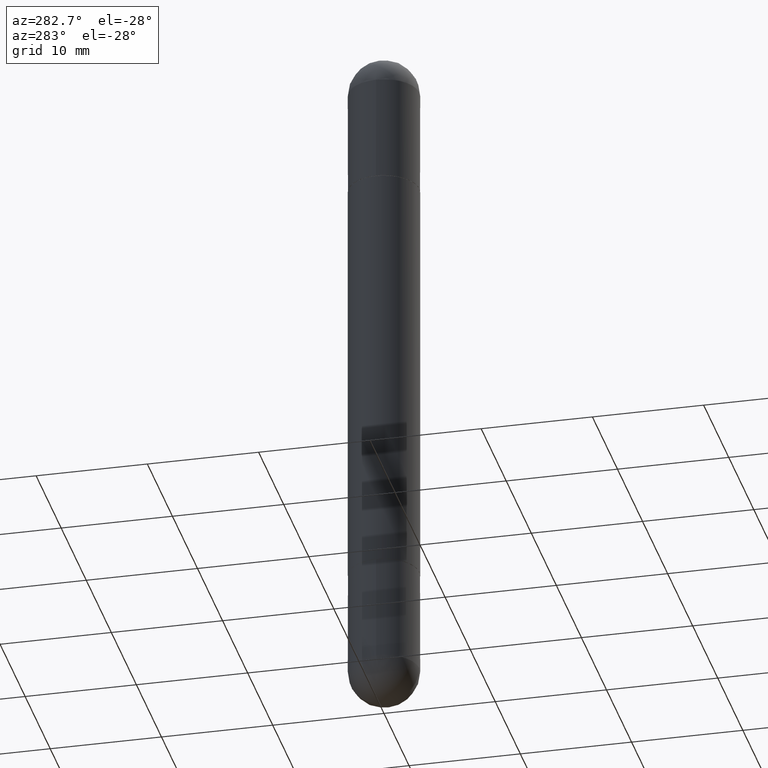
[diagram: clean part render]
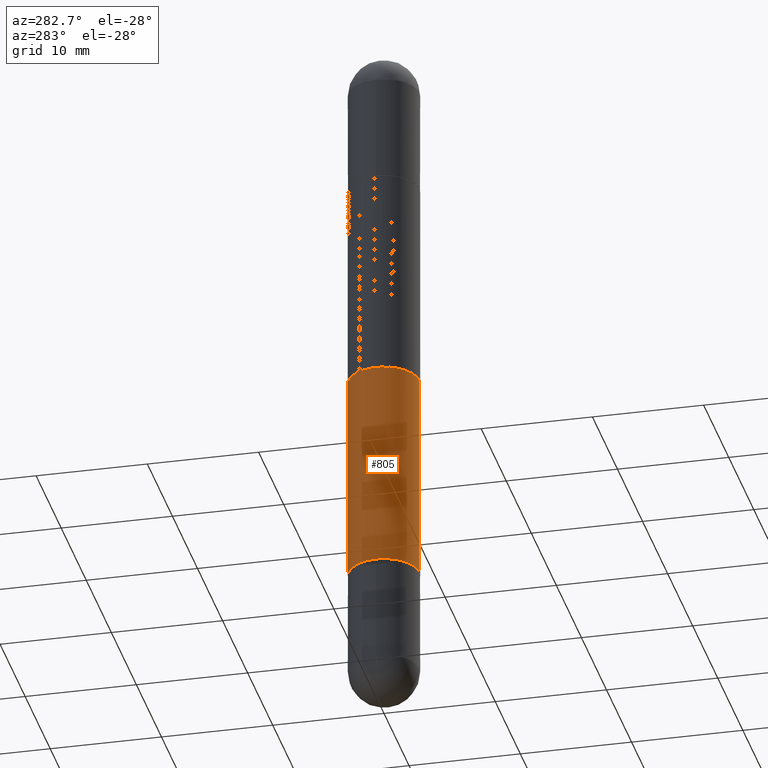
[diagram: same view with one face highlighted and labeled with its STEP entity id]
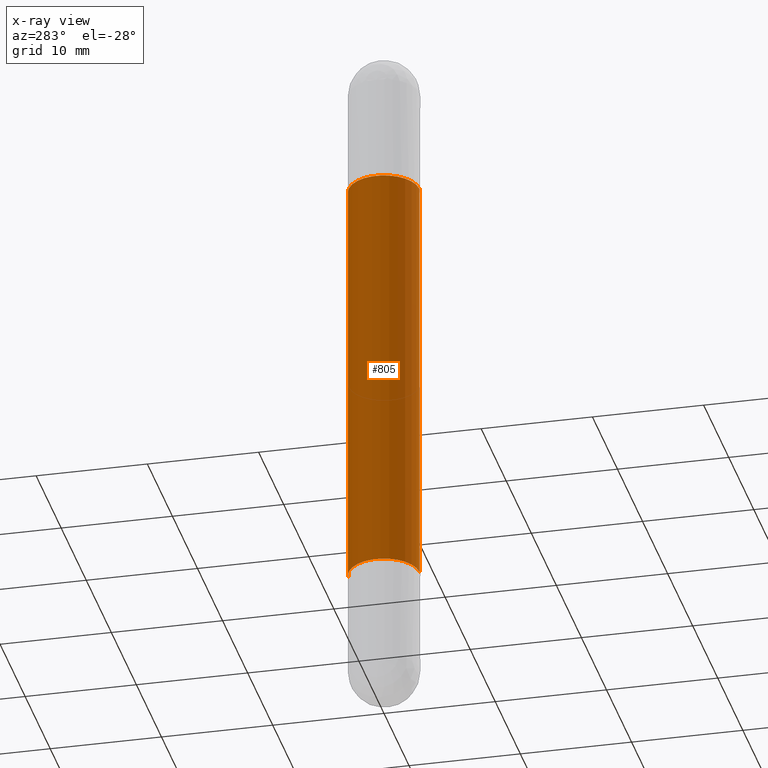
[diagram: x-ray of the same camera — body ghosted, the highlighted face saturated]
A machine part, auxiliary view. The second image highlights one B-rep face of the part: STEP entity #805.
The next image is the same camera in x-ray: the body ghosted, the highlighted face saturated — about 0% of this face is hidden behind the body in this view.
In plain terms, the highlighted cylindrical surface (edge-blend (fillet) strip) has radius 3.175 mm, axis along (-0, 0, -1).
Its self-contained STEP definition (entity closure, byte-faithful):
#11 = CIRCLE ( 'NONE', #722, 0.1250000000000002776 ) ;
#17 = DIRECTION ( 'NONE',  ( -2.446114484898439135E-29, 3.490556690175946618E-15, -1.000000000000000000 ) ) ;
#94 = FACE_OUTER_BOUND ( 'NONE', #429, .T. ) ;
#108 = CARTESIAN_POINT ( 'NONE',  ( -8.728703347107363030E-16, -0.1250000000000072442, -1.998999999999999000 ) ) ;
#138 = AXIS2_PLACEMENT_3D ( 'NONE', #165, #342, #635 ) ;
#165 = CARTESIAN_POINT ( 'NONE',  ( 0.000000000000000000, 0.000000000000000000, -2.500000000000000444 ) ) ;
#225 = CARTESIAN_POINT ( 'NONE',  ( 8.575622497214919324E-16, 0.1249999999999932693, -0.5010000000000006670 ) ) ;
#261 = EDGE_CURVE ( 'NONE', #783, #468, #570, .T. ) ;
#264 = CARTESIAN_POINT ( 'NONE',  ( 4.889782855311978936E-29, -6.977622823661715081E-15, -0.5010000000000010001 ) ) ;
#285 = ORIENTED_EDGE ( 'NONE', *, *, #802, .T. ) ;
#332 = DIRECTION ( 'NONE',  ( -6.982962677686265922E-15, -1.000000000000000000, 4.370956789862811683E-15 ) ) ;
#342 = DIRECTION ( 'NONE',  ( -2.446114484898439135E-29, 3.490556690175946223E-15, -1.000000000000000000 ) ) ;
#343 = VERTEX_POINT ( 'NONE', #580 ) ;
#365 = CARTESIAN_POINT ( 'NONE',  ( -8.728703347107364016E-16, -0.1250000000000072720, -0.5010000000000014442 ) ) ;
#386 = DIRECTION ( 'NONE',  ( 2.446114484898439135E-29, -3.490556690175946223E-15, 1.000000000000000000 ) ) ;
#393 = LINE ( 'NONE', #402, #711 ) ;
#402 = CARTESIAN_POINT ( 'NONE',  ( 8.575622497214423328E-16, 0.1250000000000001388, -2.500000000000000000 ) ) ;
#404 = DIRECTION ( 'NONE',  ( -2.446114484898439135E-29, 3.490556690175946223E-15, 1.000000000000000000 ) ) ;
#426 = ORIENTED_EDGE ( 'NONE', *, *, #481, .F. ) ;
#429 = EDGE_LOOP ( 'NONE', ( #787, #461, #285, #426 ) ) ;
#461 = ORIENTED_EDGE ( 'NONE', *, *, #699, .T. ) ;
#468 = VERTEX_POINT ( 'NONE', #365 ) ;
#481 = EDGE_CURVE ( 'NONE', #468, #542, #486, .T. ) ;
#486 = LINE ( 'NONE', #683, #663 ) ;
#516 = CARTESIAN_POINT ( 'NONE',  ( 4.889782855311978936E-29, -6.977622823661715081E-15, -1.998999999999999666 ) ) ;
#520 = DIRECTION ( 'NONE',  ( -6.982962677686265922E-15, -1.000000000000000000, -3.278217592397108762E-15 ) ) ;
#523 = AXIS2_PLACEMENT_3D ( 'NONE', #264, #386, #520 ) ;
#542 = VERTEX_POINT ( 'NONE', #108 ) ;
#570 = CIRCLE ( 'NONE', #523, 0.1250000000000002776 ) ;
#580 = CARTESIAN_POINT ( 'NONE',  ( 8.575622497214732956E-16, 0.1249999999999932693, -1.999000000000000110 ) ) ;
#635 = DIRECTION ( 'NONE',  ( -6.982962677686265922E-15, -1.000000000000000000, -4.370956789862816416E-15 ) ) ;
#663 = VECTOR ( 'NONE', #748, 39.37007874015748143 ) ;
#683 = CARTESIAN_POINT ( 'NONE',  ( -8.728703347107842263E-16, -0.1250000000000001388, -2.500000000000001332 ) ) ;
#699 = EDGE_CURVE ( 'NONE', #783, #343, #393, .T. ) ;
#711 = VECTOR ( 'NONE', #17, 39.37007874015748143 ) ;
#720 = CYLINDRICAL_SURFACE ( 'NONE', #138, 0.1250000000000001388 ) ;
#722 = AXIS2_PLACEMENT_3D ( 'NONE', #516, #404, #332 ) ;
#748 = DIRECTION ( 'NONE',  ( -2.446114484898439135E-29, 3.490556690175946618E-15, -1.000000000000000000 ) ) ;
#783 = VERTEX_POINT ( 'NONE', #225 ) ;
#787 = ORIENTED_EDGE ( 'NONE', *, *, #261, .F. ) ;
#802 = EDGE_CURVE ( 'NONE', #343, #542, #11, .T. ) ;
#805 = ADVANCED_FACE ( 'NONE', ( #94 ), #720, .T. ) ;